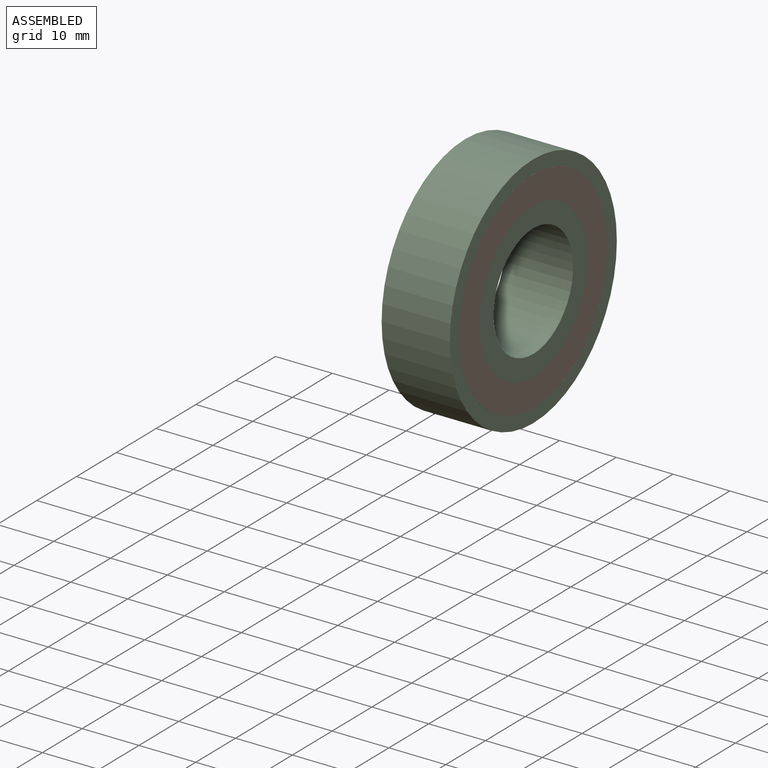
[diagram: assembled view]
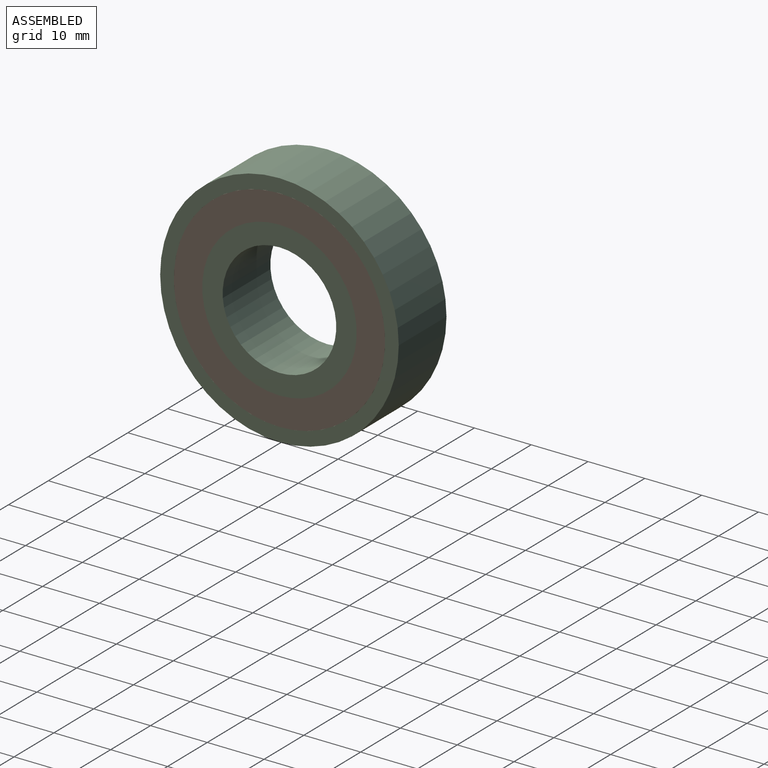
[diagram: assembled view, second angle]
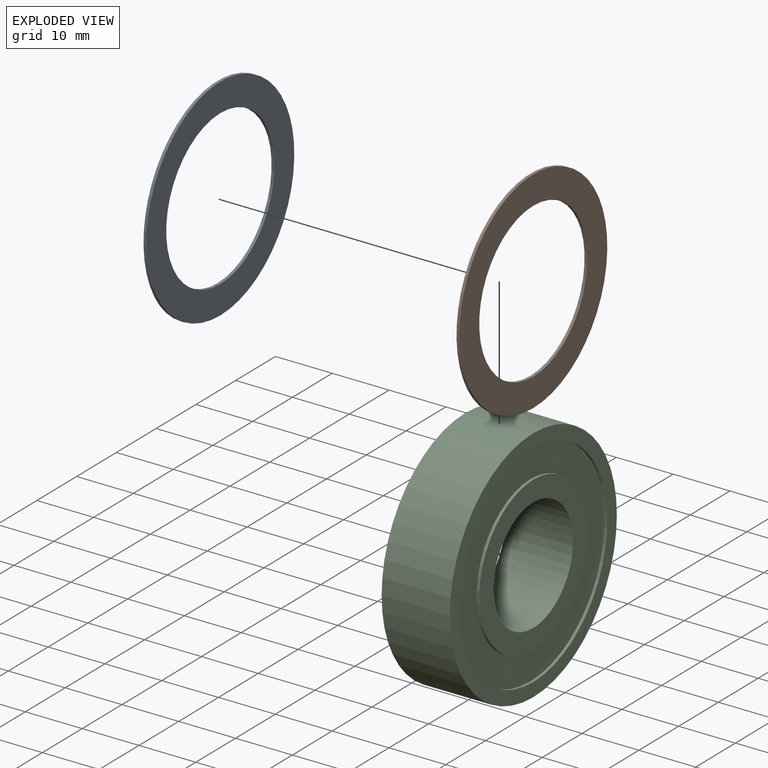
[diagram: exploded view]
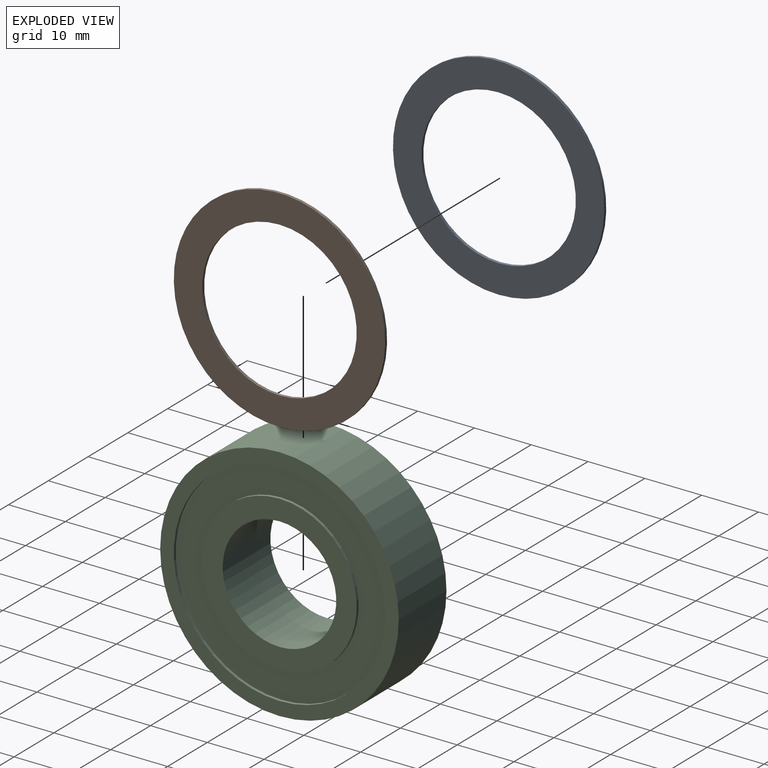
[diagram: exploded view, second angle]
ASSEMBLY  parts=3 mates=2
PART A: 4 faces, bbox 0.5x37.2x37.2 mm
  f0: cylinder r=13.6mm len=27.2mm, axis (-1,0,0), area 42.7mm2, adj f2,f3
  f1: cylinder r=18.6mm len=37.2mm, axis (-1,0,0), area 58.4mm2, adj f2,f3
  f2: plane 37.2x37.2mm, normal (1,0,0), area 505.8mm2, adj f0,f1
  f3: plane 37.2x37.2mm, normal (-1,0,0), area 505.8mm2, adj f0,f1
PART B: same geometry as A
PART C: 12 faces, bbox 12x42x42 mm
  f0: plane 27.2x27.2mm, normal (-1,0,0), area 266.9mm2, adj f2,f9
  f1: plane 27.2x27.2mm, normal (1,0,0), area 266.9mm2, adj f2,f6
  f2: cylinder r=10mm len=20mm, axis (-1,0,0), area 754mm2, adj f0,f1
  f3: cylinder r=21mm len=42mm, axis (-1,0,0), area 1583.4mm2, adj f4,f5
  f4: plane 42x42mm, normal (1,0,0), area 298.6mm2, adj f3,f7
  f5: plane 42x42mm, normal (-1,0,0), area 298.6mm2, adj f3,f10
  f6: cylinder r=13.6mm len=27.2mm, axis (1,0,0), area 42.7mm2, adj f1,f8
  f7: cylinder r=18.6mm len=37.2mm, axis (1,0,0), area 58.4mm2, adj f4,f8
  f8: plane 37.2x37.2mm, normal (1,0,0), area 505.8mm2, adj f6,f7
  f9: cylinder r=13.6mm len=27.2mm, axis (-1,0,0), area 42.7mm2, adj f0,f11
  f10: cylinder r=18.6mm len=37.2mm, axis (-1,0,0), area 58.4mm2, adj f5,f11
  f11: plane 37.2x37.2mm, normal (-1,0,0), area 505.8mm2, adj f9,f10
PLACE A t=(26.27,14.5,0.64)mm
PLACE B t=(37.77,14.5,0.64)mm
PLACE C t=(26.27,14.5,0.64)mm
MATE fastened A.f1 <-> C.f6  axis (1,0,0) through (26.77,14.5,0.64)mm
MATE fastened C.f7 <-> B.f1  axis (1,0,0) through (37.77,14.5,0.64)mm
